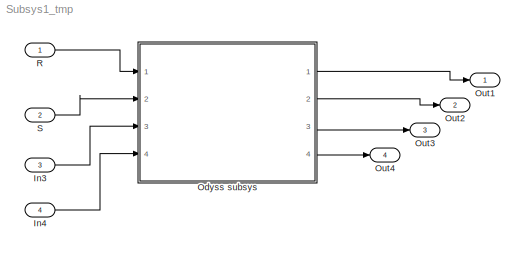
MODEL Subsys1_tmp
KIND model
BLOCK [Inport] In3
  IconDisplay = Port number
  Port = 3
  SID = 3
  SampleTime = 1
BLOCK [Inport] In4
  IconDisplay = Port number
  Port = 4
  SID = 4
  SampleTime = 1
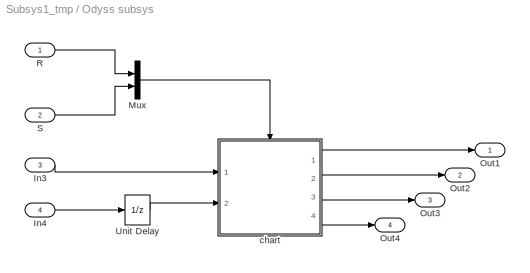
BLOCK [SubSystem] Odyss subsys
  Ports = [4, 4]
  RequestExecContextInheritance = off
  SID = 5
  Variant = off
BLOCK [Inport] Odyss subsys/In3
  IconDisplay = Port number
  Port = 3
  SID = 8
  SampleTime = 1
BLOCK [Inport] Odyss subsys/In4
  IconDisplay = Port number
  Port = 4
  SID = 9
  SampleTime = 1
BLOCK [Mux] Odyss subsys/Mux
  DisplayOption = bar
  Inputs = 2
  Ports = [2, 1]
  SID = 10
BLOCK [Outport] Odyss subsys/Out1
  IconDisplay = Port number
  SID = 13
BLOCK [Outport] Odyss subsys/Out2
  IconDisplay = Port number
  Port = 2
  SID = 14
BLOCK [Outport] Odyss subsys/Out3
  IconDisplay = Port number
  Port = 3
  SID = 15
BLOCK [Outport] Odyss subsys/Out4
  IconDisplay = Port number
  Port = 4
  SID = 16
BLOCK [Inport] Odyss subsys/R
  IconDisplay = Port number
  SID = 6
  SampleTime = 1
BLOCK [Inport] Odyss subsys/S
  IconDisplay = Port number
  Port = 2
  SID = 7
  SampleTime = 1
BLOCK [UnitDelay] Odyss subsys/Unit Delay
  SID = 11
  SampleTime = -1
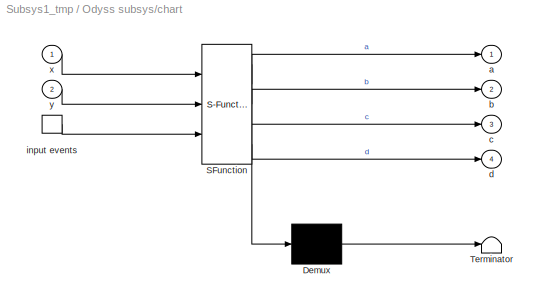
BLOCK [SubSystem] Odyss subsys/chart
  ErrorFcn = Stateflow.Translate.translate
  PermitHierarchicalResolution = ParametersOnly
  Ports = [2, 4, 0, 1]
  RequestExecContextInheritance = off
  SFBlockType = Chart
  SID = 12
  TreatAsAtomicUnit = on
  Variant = off
BLOCK [Demux] Odyss subsys/chart/ Demux 
  Outputs = 1
  Ports = [1, 1]
  SID = 12::15
BLOCK [S-Function] Odyss subsys/chart/ SFunction 
  EnableBusSupport = off
  FunctionName = sf_sfun
  PortCounts = [3 5]
  Ports = [3, 5]
  SFunctionDeploymentMode = off
  SID = 12::14
  Tag = Stateflow S-Function Subsys1_tmp 2
BLOCK [Terminator] Odyss subsys/chart/ Terminator 
  SID = 12::16
BLOCK [TriggerPort] Odyss subsys/chart/ input events 
  Ports = [0, 1]
  SID = 12::3
  ShowOutputPort = on
  TriggerType = either
BLOCK [Outport] Odyss subsys/chart/a
  IconDisplay = Port number
  SID = 12::7
BLOCK [Outport] Odyss subsys/chart/b
  IconDisplay = Port number
  Port = 2
  SID = 12::8
BLOCK [Outport] Odyss subsys/chart/c
  IconDisplay = Port number
  Port = 3
  SID = 12::9
BLOCK [Outport] Odyss subsys/chart/d
  IconDisplay = Port number
  Port = 4
  SID = 12::10
BLOCK [Inport] Odyss subsys/chart/x
  IconDisplay = Port number
  SID = 12::1
BLOCK [Inport] Odyss subsys/chart/y
  IconDisplay = Port number
  Port = 2
  SID = 12::2
BLOCK [Outport] Out1
  IconDisplay = Port number
  SID = 17
BLOCK [Outport] Out2
  IconDisplay = Port number
  Port = 2
  SID = 18
BLOCK [Outport] Out3
  IconDisplay = Port number
  Port = 3
  SID = 19
BLOCK [Outport] Out4
  IconDisplay = Port number
  Port = 4
  SID = 20
BLOCK [Inport] R
  IconDisplay = Port number
  SID = 1
  SampleTime = 1
BLOCK [Inport] S
  IconDisplay = Port number
  Port = 2
  SID = 2
  SampleTime = 1
LINE In3:1 -> Odyss subsys:3
LINE In4:1 -> Odyss subsys:4
LINE Odyss subsys/In3:1 -> Odyss subsys/chart:1
LINE Odyss subsys/In4:1 -> Odyss subsys/Unit Delay:1
LINE Odyss subsys/Mux:1 -> Odyss subsys/chart:trigger
LINE Odyss subsys/R:1 -> Odyss subsys/Mux:1
LINE Odyss subsys/S:1 -> Odyss subsys/Mux:2
LINE Odyss subsys/Unit Delay:1 -> Odyss subsys/chart:2
LINE Odyss subsys/chart/ Demux :1 -> Odyss subsys/chart/ Terminator :1
LINE Odyss subsys/chart/ SFunction :1 -> Odyss subsys/chart/ Demux :1
LINE Odyss subsys/chart/ SFunction :2 -> Odyss subsys/chart/a:1
LINE Odyss subsys/chart/ SFunction :3 -> Odyss subsys/chart/b:1
LINE Odyss subsys/chart/ SFunction :4 -> Odyss subsys/chart/c:1
LINE Odyss subsys/chart/ SFunction :5 -> Odyss subsys/chart/d:1
LINE Odyss subsys/chart/ input events :1 -> Odyss subsys/chart/ SFunction :3
LINE Odyss subsys/chart/x:1 -> Odyss subsys/chart/ SFunction :1
LINE Odyss subsys/chart/y:1 -> Odyss subsys/chart/ SFunction :2
LINE Odyss subsys/chart:1 -> Odyss subsys/Out1:1
LINE Odyss subsys/chart:2 -> Odyss subsys/Out2:1
LINE Odyss subsys/chart:3 -> Odyss subsys/Out3:1
LINE Odyss subsys/chart:4 -> Odyss subsys/Out4:1
LINE Odyss subsys:1 -> Out1:1
LINE Odyss subsys:2 -> Out2:1
LINE Odyss subsys:3 -> Out3:1
LINE Odyss subsys:4 -> Out4:1
LINE R:1 -> Odyss subsys:1
LINE S:1 -> Odyss subsys:2
CHART Odyss subsys/chart states=12 transitions=12
  STATE_LABEL 'A'
  STATE_LABEL 'B'
  STATE_LABEL 'Aa/\\nen:a=x+1'
  STATE_LABEL 'Ab/\\nen:a=x+2'
  STATE_LABEL 'C'
  STATE_LABEL 'Ba/\\nen:b=x+3'
  STATE_LABEL 'Bb/\\nen:b=x+4'
  STATE_LABEL 'D'
  STATE_LABEL 'Ca/\\nen:c=x+5'
  STATE_LABEL 'Cb/\\nen:c=x+6'
  STATE_LABEL 'Da/\\nen:d=x+7'
  STATE_LABEL 'Db/\\nen:d=x+8'
